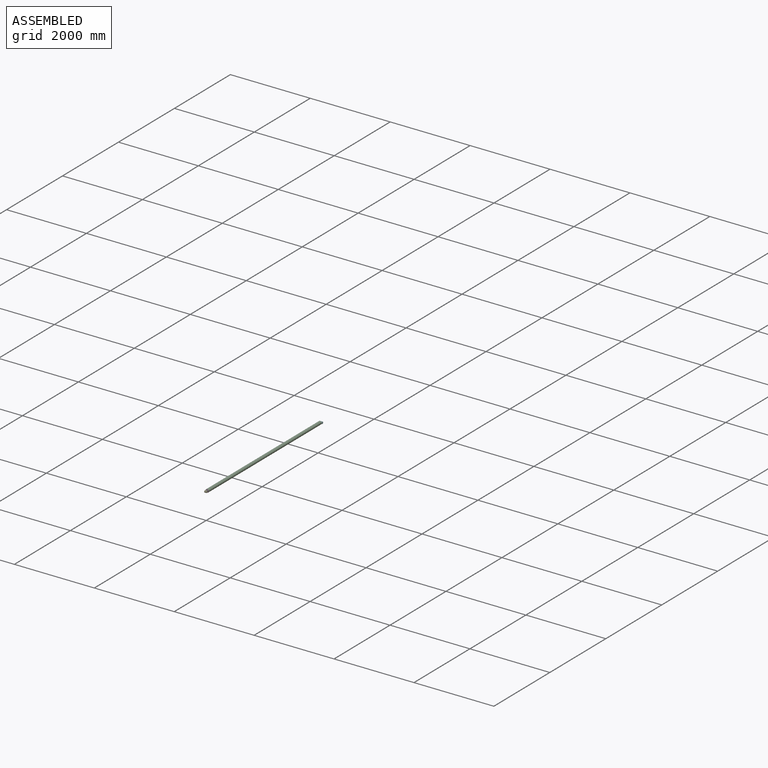
[diagram: assembled view]
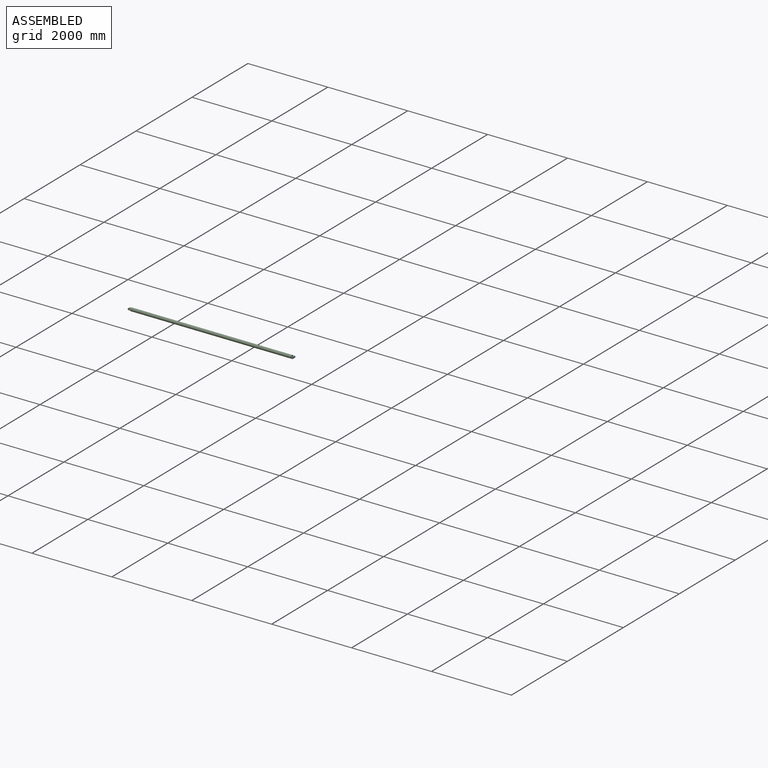
[diagram: assembled view, second angle]
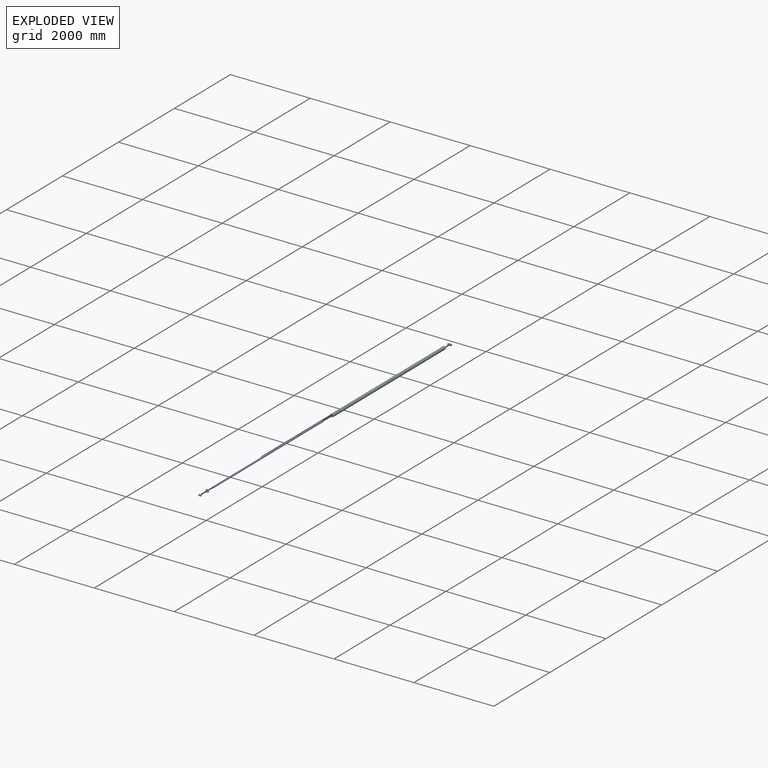
[diagram: exploded view]
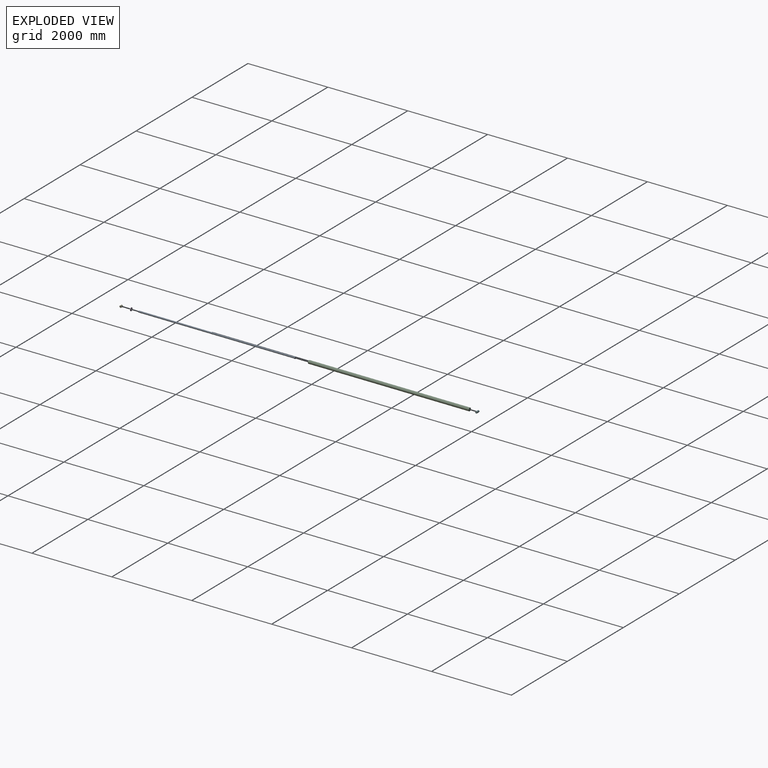
[diagram: exploded view, second angle]
ASSEMBLY  parts=6 mates=5
PART A: 5 faces, bbox 3921x50x50 mm
  f0: cylinder r=25mm len=50mm, axis (-1,0,0), area 2670.4mm2, adj f1,f3
  f1: plane 50x50mm, normal (-1,0,0), area 1963.5mm2, adj f0
  f2: cylinder r=20mm len=3904mm, axis (1,0,0), area 490591.1mm2, adj f3,f4
  f3: plane 50x50mm, normal (1,0,0), area 706.9mm2, adj f0,f2
  f4: plane 40x40mm, normal (1,0,0), area 1256.6mm2, adj f2
PART B: 5 faces, bbox 5x47x47 mm
  f0: cylinder r=23.5mm len=47mm, axis (-1,0,0), area 738.3mm2, adj f1,f2
  f1: plane 47x47mm, normal (1,0,0), area 144.5mm2, adj f0,f3
  f2: plane 47x47mm, normal (-1,0,0), area 144.5mm2, adj f0,f4
  f3: cone r=20mm half-angle=45deg, axis (1,0,0), area 472.1mm2, adj f1,f4
  f4: cone r=22.5mm half-angle=45deg, axis (-1,0,0), area 472.1mm2, adj f2,f3
PART C: 16 faces, bbox 91.7x4026x80 mm
  f0: cylinder r=40mm len=4026mm, axis (0,1,0), area 1010927.3mm2, adj f1,f2,f5,f10
  f1: plane 80x80mm, normal (0,-1,0), area 1178.1mm2, adj f0,f3
  f2: plane 80x80mm, normal (0,1,0), area 5026.5mm2, adj f0
  f3: cylinder r=35mm len=4014.5mm, axis (0,-1,0), area 882479.9mm2, adj f1,f4,f13,f14,f15
  f4: plane 70x70mm, normal (0,-1,0), area 3848.5mm2, adj f3
  f5: cylinder r=12mm len=24mm, axis (1,0,0), area 952.3mm2, adj f0,f7
  f6: cylinder r=8mm len=16mm, axis (1,0,0), area 609.1mm2, adj f7,f8
  f7: plane 24x24mm, normal (-1,0,0), area 251.3mm2, adj f5,f6
  f8: cylinder r=40mm len=16mm, axis (0,1,0), area 24.6mm2, adj f6,f15
  f9: cylinder r=8mm len=16mm, axis (1,0,0), area 609.2mm2, adj f11,f12
  f10: cylinder r=12mm len=24mm, axis (1,0,0), area 952.4mm2, adj f0,f11
  f11: plane 24x24mm, normal (-1,0,0), area 251.3mm2, adj f9,f10
  f12: cylinder r=40mm len=16mm, axis (0,1,0), area 24.6mm2, adj f9,f13,f14
  f13: extruded ~15x7.5mm, area 125.7mm2, adj f3,f12,f14
  f14: cylinder r=7.5mm len=15mm, axis (1,0,0), area 125.7mm2, adj f3,f12,f13
  f15: cylinder r=7.5mm len=15mm, axis (1,0,0), area 251.5mm2, adj f3,f8
PART D: 12 faces, bbox 10x80x80 mm
  f0: plane 80x80mm, normal (-1,0,0), area 3497.4mm2, adj f1,f3,f8,f10
  f1: cylinder r=21.5mm len=43mm, axis (-1,0,0), area 337.7mm2, adj f0,f7
  f2: cylinder r=21.5mm len=43mm, axis (-1,0,0), area 337.7mm2, adj f4,f6
  f3: cylinder r=40mm len=80mm, axis (-1,0,0), area 2513.3mm2, adj f0,f4
  f4: plane 80x80mm, normal (1,0,0), area 3574.3mm2, adj f2,f3
  f5: cylinder r=23.5mm len=47mm, axis (-1,0,0), area 738.3mm2, adj f6,f7
  f6: plane 47x47mm, normal (-1,0,0), area 282.7mm2, adj f2,f5
  f7: plane 47x47mm, normal (1,0,0), area 282.7mm2, adj f1,f5
  f8: cylinder r=3.5mm len=8mm, axis (-1,0,0), area 175.9mm2, adj f0,f9
  f9: plane 7x7mm, normal (-1,0,0), area 38.5mm2, adj f8
  f10: cylinder r=3.5mm len=8mm, axis (-1,0,0), area 175.9mm2, adj f0,f11
  f11: plane 7x7mm, normal (-1,0,0), area 38.5mm2, adj f10
PART E: 9 faces, bbox 55x54.1x54.1 mm
  f0: cylinder r=12.5mm len=51mm, axis (-1,0,0), area 3978.6mm2, adj f4,f6,f8
  f1: cylinder r=25mm len=51mm, axis (-1,0,0), area 7984.2mm2, adj f5,f7,f8
  f2: plane 46x46mm, normal (1,0,0), area 1001.4mm2, adj f6,f7
  f3: plane 46x46mm, normal (-1,0,0), area 1001.4mm2, adj f4,f5
  f4: torus R=14.5mm, axis (1,0,0), area 261.1mm2, adj f0,f3
  f5: torus R=23mm, axis (1,0,0), area 479.1mm2, adj f1,f3
  f6: torus R=14.5mm, axis (1,0,0), area 261.1mm2, adj f0,f2
  f7: torus R=23mm, axis (1,0,0), area 479.1mm2, adj f1,f2
  f8: cylinder r=2.92mm len=12.85mm, axis (0,-1,0), area 231.1mm2, adj f0,f1
PART F: 9 faces, bbox 85x54.1x54.1 mm
  f0: cylinder r=12.5mm len=81mm, axis (-1,0,0), area 6304.4mm2, adj f4,f6,f8
  f1: cylinder r=25mm len=81mm, axis (-1,0,0), area 12666.7mm2, adj f5,f7,f8
  f2: plane 46x46mm, normal (1,0,0), area 1001.4mm2, adj f6,f7
  f3: plane 46x46mm, normal (-1,0,0), area 1001.4mm2, adj f4,f5
  f4: torus R=14.5mm, axis (1,0,0), area 261.1mm2, adj f0,f3
  f5: torus R=23mm, axis (1,0,0), area 479.1mm2, adj f1,f3
  f6: torus R=14.5mm, axis (1,0,0), area 261.1mm2, adj f0,f2
  f7: torus R=23mm, axis (1,0,0), area 479.1mm2, adj f1,f2
  f8: cylinder r=4.25mm len=13.25mm, axis (0,-1,0), area 338.8mm2, adj f0,f1
PLACE A rot(axis=(0.71,-0.71,0),180deg) t=(1319.64,2909.47,-644.45)mm
PLACE B rot(axis=(-0.58,-0.58,0.58),120deg) t=(1319.64,-995.03,-644.45)mm
PLACE C t=(1319.93,3038.47,-643.88)mm
PLACE D rot(axis=(-0.58,-0.58,0.58),120deg) t=(1319.64,-997.53,-644.45)mm
PLACE E t=(1292.14,-1036.61,-644.45)mm
PLACE F rot(axis=(1,0,0),180deg) t=(1279.64,3063.56,-644.45)mm
MATE fastened B.f0 <-> D.f3  axis (0,-1,0) through (1319.64,-992.53,-644.45)mm
MATE fastened D.f3 <-> C.f0  axis (0,1,0) through (1319.64,-987.53,-644.45)mm
MATE fastened F.f8 <-> C.f0  axis (0,1,0) through (1319.64,3038.47,-644.45)mm
MATE slider A.f2 <-> D.f1  axis (0,-1,0) through (1319.64,2892.47,-644.45)mm
MATE fastened E.f8 <-> A.f2  axis (0,-1,0) through (1319.64,-1011.53,-644.45)mm
